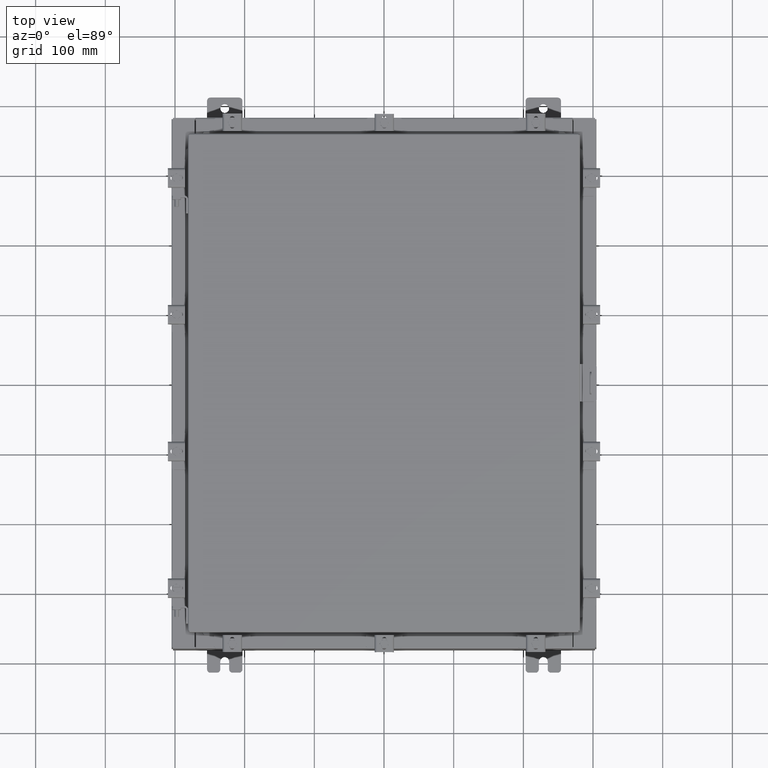
[diagram: clean part render]
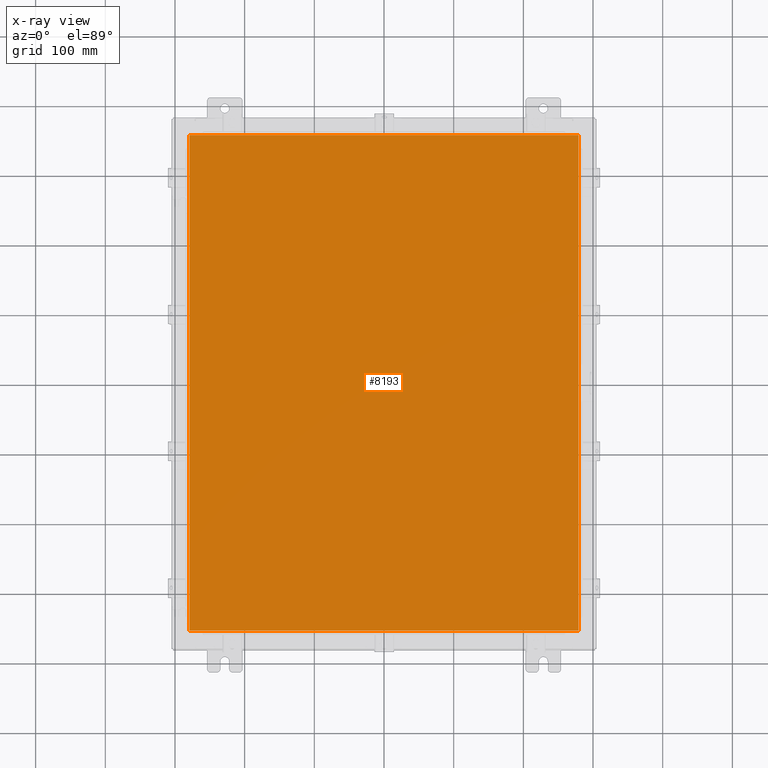
[diagram: x-ray — body ghosted, one internal face saturated and labeled with its STEP entity id]
A machine part, top view, then the same camera in x-ray: the body is ghosted and one INTERNAL B-rep face — a face not visible from any outside direction — is saturated and labeled: STEP entity #8193.
In plain terms, the highlighted planar face has unit normal (0, 0, -1).
Its self-contained STEP definition (entity closure, byte-faithful):
#142 = EDGE_LOOP ( 'NONE', ( #5816, #3809, #23122, #7264 ) ) ;
#753 = DIRECTION ( 'NONE',  ( 0.0000000000000000000, 0.0000000000000000000, -1.000000000000000000 ) ) ;
#2596 = CARTESIAN_POINT ( 'NONE',  ( -10.99030000000000000, 14.00629999999999800, -0.07470000000000000300 ) ) ;
#3499 = EDGE_CURVE ( 'NONE', #17280, #19919, #4298, .T. ) ;
#3809 = ORIENTED_EDGE ( 'NONE', *, *, #17433, .F. ) ;
#4298 = LINE ( 'NONE', #21489, #13229 ) ;
#4738 = CARTESIAN_POINT ( 'NONE',  ( -10.99030000000000000, 14.00630000000000100, -0.07470000000000019700 ) ) ;
#5407 = DIRECTION ( 'NONE',  ( 1.000000000000000000, -0.0000000000000000000, -0.0000000000000000000 ) ) ;
#5816 = ORIENTED_EDGE ( 'NONE', *, *, #22229, .F. ) ;
#5864 = EDGE_CURVE ( 'NONE', #19919, #12405, #20265, .T. ) ;
#7264 = ORIENTED_EDGE ( 'NONE', *, *, #3499, .F. ) ;
#7859 = CARTESIAN_POINT ( 'NONE',  ( 0.0000000000000000000, 0.0000000000000000000, -0.07470000000000000300 ) ) ;
#8193 = ADVANCED_FACE ( 'NONE', ( #9484 ), #11420, .T. ) ;
#9223 = DIRECTION ( 'NONE',  ( 0.0000000000000000000, 1.000000000000000000, 0.0000000000000000000 ) ) ;
#9484 = FACE_OUTER_BOUND ( 'NONE', #142, .T. ) ;
#10685 = VECTOR ( 'NONE', #19038, 39.37007874015748100 ) ;
#10732 = LINE ( 'NONE', #20014, #20317 ) ;
#11420 = PLANE ( 'NONE',  #16310 ) ;
#12031 = LINE ( 'NONE', #16132, #22119 ) ;
#12405 = VERTEX_POINT ( 'NONE', #14582 ) ;
#13229 = VECTOR ( 'NONE', #21943, 39.37007874015748100 ) ;
#13254 = DIRECTION ( 'NONE',  ( -1.000000000000000000, 0.0000000000000000000, -0.0000000000000000000 ) ) ;
#14582 = CARTESIAN_POINT ( 'NONE',  ( -10.99030000000000000, -14.00629999999999600, -0.07470000000000000300 ) ) ;
#15662 = CARTESIAN_POINT ( 'NONE',  ( 10.99030000000000000, 14.00629999999999800, -0.07470000000000000300 ) ) ;
#16132 = CARTESIAN_POINT ( 'NONE',  ( -10.99029999999999600, -14.00629999999999800, -0.07470000000000019700 ) ) ;
#16310 = AXIS2_PLACEMENT_3D ( 'NONE', #7859, #753, #13254 ) ;
#17280 = VERTEX_POINT ( 'NONE', #15662 ) ;
#17433 = EDGE_CURVE ( 'NONE', #12405, #19642, #12031, .T. ) ;
#19038 = DIRECTION ( 'NONE',  ( 0.0000000000000000000, -1.000000000000000000, 0.0000000000000000000 ) ) ;
#19642 = VERTEX_POINT ( 'NONE', #21614 ) ;
#19919 = VERTEX_POINT ( 'NONE', #2596 ) ;
#20014 = CARTESIAN_POINT ( 'NONE',  ( 10.99030000000000000, -14.00629999999999800, -0.07470000000000019700 ) ) ;
#20265 = LINE ( 'NONE', #4738, #10685 ) ;
#20317 = VECTOR ( 'NONE', #9223, 39.37007874015748100 ) ;
#21489 = CARTESIAN_POINT ( 'NONE',  ( 10.99030000000000000, 14.00629999999999800, -0.07470000000000019700 ) ) ;
#21614 = CARTESIAN_POINT ( 'NONE',  ( 10.99030000000000000, -14.00629999999999800, -0.07470000000000000300 ) ) ;
#21943 = DIRECTION ( 'NONE',  ( -1.000000000000000000, -0.0000000000000000000, -0.0000000000000000000 ) ) ;
#22119 = VECTOR ( 'NONE', #5407, 39.37007874015748100 ) ;
#22229 = EDGE_CURVE ( 'NONE', #19642, #17280, #10732, .T. ) ;
#23122 = ORIENTED_EDGE ( 'NONE', *, *, #5864, .F. ) ;